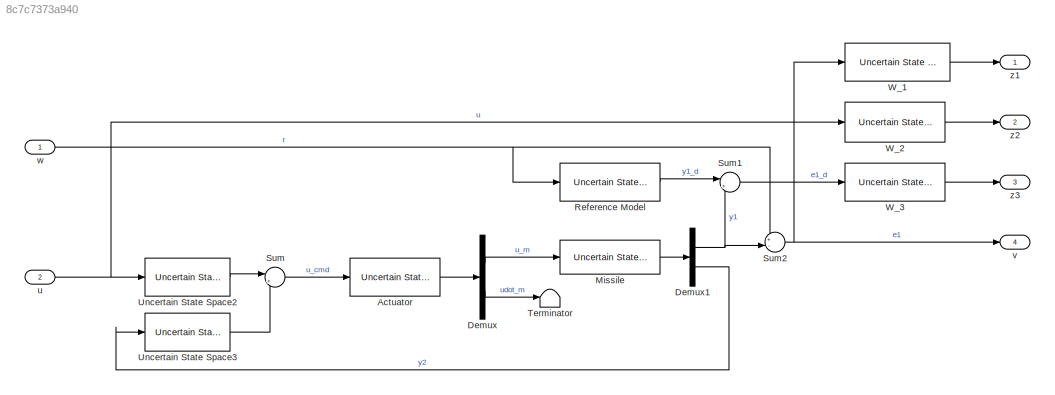
MODEL slx_8c7c7373a940
KIND model
CONFIG AbsTol = auto
CONFIG EnableMultiTasking = off
CONFIG FixedStep = auto
CONFIG MaxStep = auto
CONFIG MinStep = auto
CONFIG RelTol = 1e-3
CONFIG SampleTimeConstraint = Unconstrained
CONFIG SolverName = VariableStepAuto
CONFIG StartTime = 0.0
CONFIG StopTime = 10.0
BLOCK [Reference] Actuator  REF=RCTblocks/Uncertain State Space
  SourceBlock = RCTblocks/Uncertain State Space
  SourceType = Uncertain State Space Block
  Tag = USS
BLOCK [Demux] Demux
  Outputs = 2
BLOCK [Demux] Demux1
  Outputs = 2
BLOCK [Reference] Missile  REF=RCTblocks/Uncertain State Space
  SourceBlock = RCTblocks/Uncertain State Space
  SourceType = Uncertain State Space Block
  Tag = USS
BLOCK [Reference] Reference Model  REF=RCTblocks/Uncertain State Space
  SourceBlock = RCTblocks/Uncertain State Space
  SourceType = Uncertain State Space Block
  Tag = USS
BLOCK [Sum] Sum
  Inputs = |+-
BLOCK [Sum] Sum1
  Inputs = |+-
BLOCK [Sum] Sum2
  Inputs = +-|
BLOCK [Terminator] Terminator
BLOCK [Reference] Uncertain State Space2  REF=RCTblocks/Uncertain State Space
  SourceBlock = RCTblocks/Uncertain State Space
  SourceType = Uncertain State Space Block
  Tag = USS
BLOCK [Reference] Uncertain State Space3  REF=RCTblocks/Uncertain State Space
  SourceBlock = RCTblocks/Uncertain State Space
  SourceType = Uncertain State Space Block
  Tag = USS
BLOCK [Reference] W_1  REF=RCTblocks/Uncertain State Space
  SourceBlock = RCTblocks/Uncertain State Space
  SourceType = Uncertain State Space Block
  Tag = USS
BLOCK [Reference] W_2  REF=RCTblocks/Uncertain State Space
  SourceBlock = RCTblocks/Uncertain State Space
  SourceType = Uncertain State Space Block
  Tag = USS
BLOCK [Reference] W_3  REF=RCTblocks/Uncertain State Space
  SourceBlock = RCTblocks/Uncertain State Space
  SourceType = Uncertain State Space Block
  Tag = USS
BLOCK [Inport] u
  Port = 2
BLOCK [Outport] v
  Port = 4
BLOCK [Inport] w
BLOCK [Outport] z1
BLOCK [Outport] z2
  Port = 2
BLOCK [Outport] z3
  Port = 3
LINE Actuator:1 -> Demux:1
NET Demux1:1 -> Sum1:2, Sum2:2
LINE Demux1:2 -> Uncertain State Space3:1
LINE Demux:1 -> Missile:1
LINE Demux:2 -> Terminator:1
LINE Missile:1 -> Demux1:1
LINE Reference Model:1 -> Sum1:1
LINE Sum1:1 -> W_3:1
NET Sum2:1 -> W_1:1, v:1
LINE Sum:1 -> Actuator:1
LINE Uncertain State Space2:1 -> Sum:1
LINE Uncertain State Space3:1 -> Sum:2
LINE W_1:1 -> z1:1
LINE W_2:1 -> z2:1
LINE W_3:1 -> z3:1
NET u:1 -> Uncertain State Space2:1, W_2:1
NET w:1 -> Reference Model:1, Sum2:1
note: NET lines group one-source signal fan-out (src -> all destinations, sorted); 1:1 wires keep LINE
